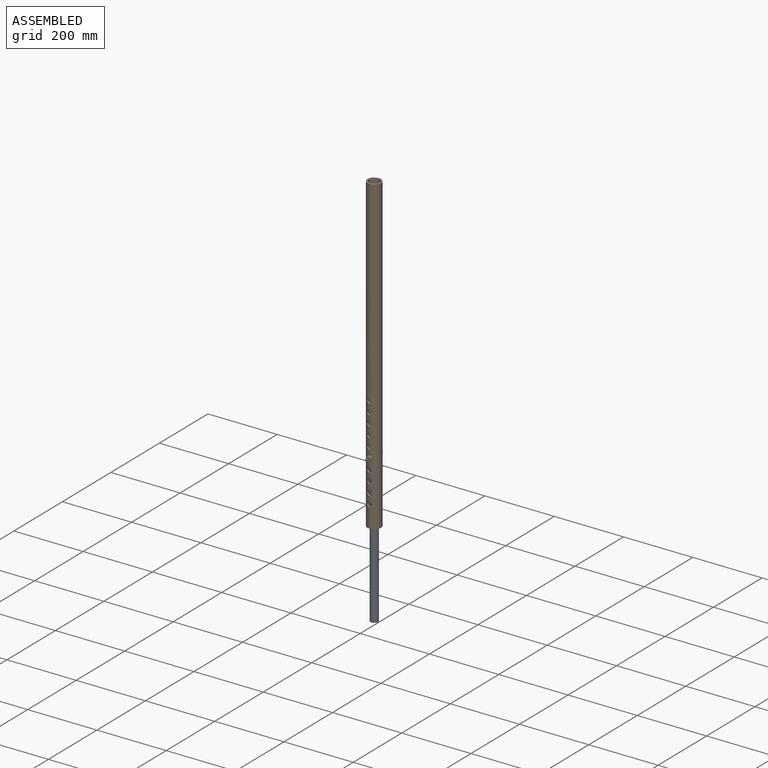
[diagram: assembled view]
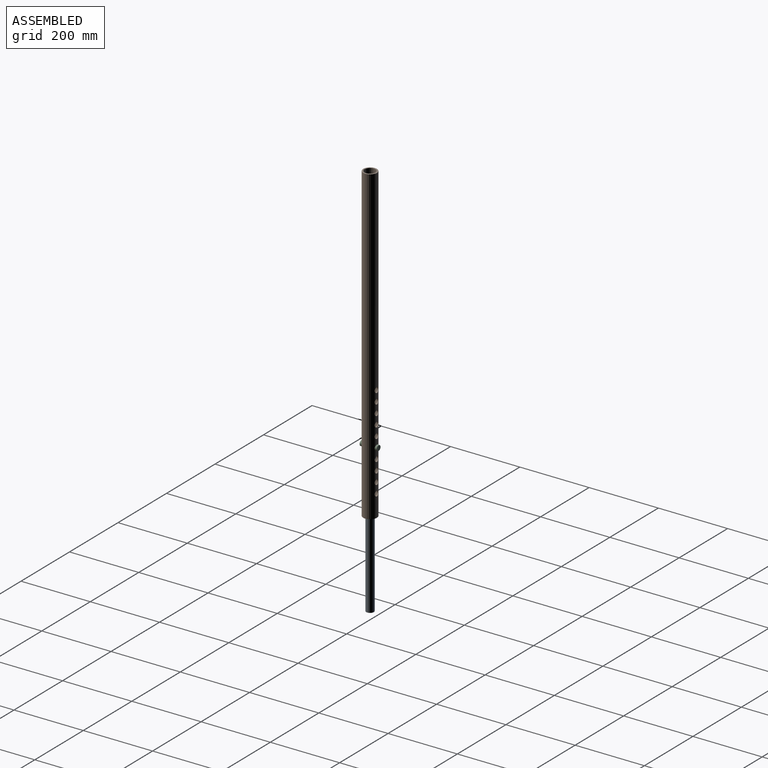
[diagram: assembled view, second angle]
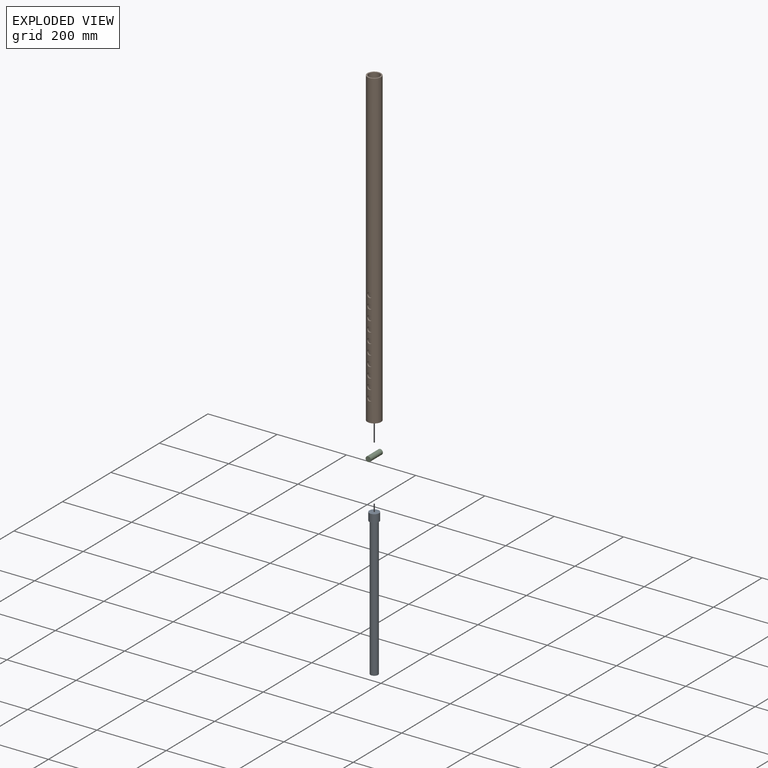
[diagram: exploded view]
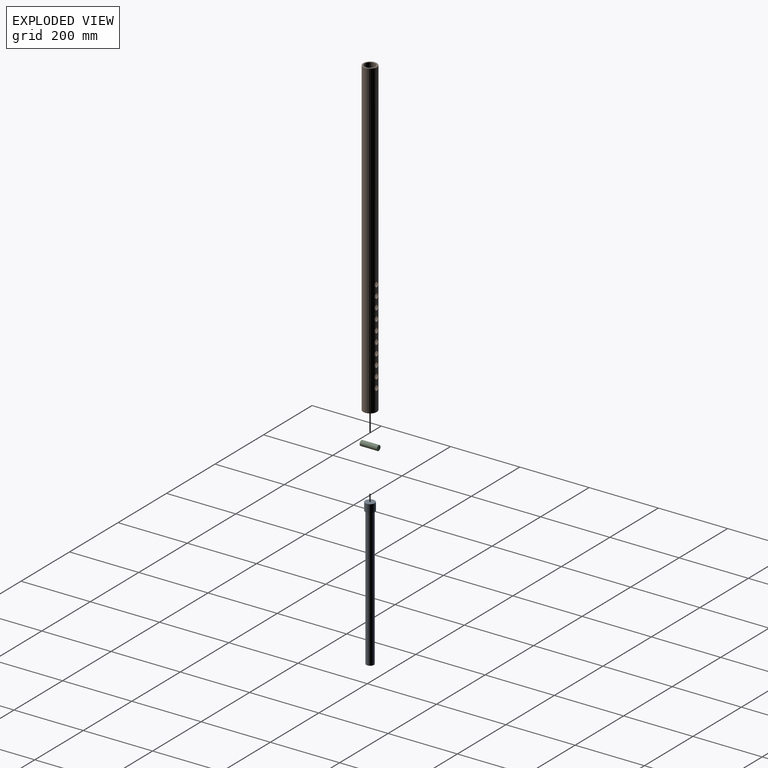
[diagram: exploded view, second angle]
ASSEMBLY  parts=3 mates=2
PART A: 5 faces, bbox 28x28x423 mm
  f0: cylinder r=11mm len=400mm, axis (0,0,-1), area 27646mm2, adj f1,f4
  f1: plane 22x22mm, normal (0,0,-1), area 380.1mm2, adj f0
  f2: cylinder r=14mm len=28mm, axis (0,0,-1), area 2023.2mm2, adj f3,f4
  f3: plane 28x28mm, normal (0,0,1), area 615.8mm2, adj f2
  f4: plane 28x28mm, normal (0,0,-1), area 235.6mm2, adj f0,f2
PART B: 24 faces, bbox 39.9x39.9x900 mm
  f0: cylinder r=16mm len=900mm, axis (0,0,-1), area 86837.4mm2, adj f2,f3,f4,f5,f6,f7,f8,f9
  f1: cylinder r=19.93mm len=900mm, axis (0,0,-1), area 109084.3mm2, adj f2,f3,f4,f5,f6,f7,f8,f9
  f2: plane 39.85x39.85mm, normal (0,0,1), area 443.1mm2, adj f0,f1
  f3: plane 39.85x39.85mm, normal (0,0,-1), area 443.1mm2, adj f0,f1
  f4: cylinder r=7.5mm len=15mm, axis (0,-1,0), area 194.1mm2, adj f0,f1
  f5: cylinder r=7.5mm len=15mm, axis (0,-1,0), area 194.1mm2, adj f0,f1
  f6: cylinder r=7.5mm len=15mm, axis (0,-1,0), area 194.1mm2, adj f0,f1
  f7: cylinder r=7.5mm len=15mm, axis (0,-1,0), area 194.1mm2, adj f0,f1
  f8: cylinder r=7.5mm len=15mm, axis (0,-1,0), area 194.1mm2, adj f0,f1
  f9: cylinder r=7.5mm len=15mm, axis (0,-1,0), area 194.1mm2, adj f0,f1
  f10: cylinder r=7.5mm len=15mm, axis (0,-1,0), area 194.1mm2, adj f0,f1
  f11: cylinder r=7.5mm len=15mm, axis (0,-1,0), area 194.1mm2, adj f0,f1
  f12: cylinder r=7.5mm len=15mm, axis (0,-1,0), area 194.1mm2, adj f0,f1
  f13: cylinder r=7.5mm len=15mm, axis (0,-1,0), area 194.1mm2, adj f0,f1
  f14: cylinder r=7.5mm len=15mm, axis (0,-1,0), area 194.1mm2, adj f0,f1
  f15: cylinder r=7.5mm len=15mm, axis (0,-1,0), area 194.1mm2, adj f0,f1
  f16: cylinder r=7.5mm len=15mm, axis (0,-1,0), area 194.1mm2, adj f0,f1
  f17: cylinder r=7.5mm len=15mm, axis (0,-1,0), area 194.1mm2, adj f0,f1
  f18: cylinder r=7.5mm len=15mm, axis (0,-1,0), area 194.1mm2, adj f0,f1
  f19: cylinder r=7.5mm len=15mm, axis (0,-1,0), area 194.1mm2, adj f0,f1
  f20: cylinder r=7.5mm len=15mm, axis (0,-1,0), area 194.1mm2, adj f0,f1
  f21: cylinder r=7.5mm len=15mm, axis (0,-1,0), area 194.1mm2, adj f0,f1
  f22: cylinder r=7.5mm len=15mm, axis (0,-1,0), area 194.1mm2, adj f0,f1
  f23: cylinder r=7.5mm len=15mm, axis (0,-1,0), area 194.1mm2, adj f0,f1
PART C: 3 faces, bbox 15x50x15 mm
  f0: cylinder r=7.5mm len=50mm, axis (0,1,0), area 2356.2mm2, adj f1,f2
  f1: plane 15x15mm, normal (0,-1,0), area 176.7mm2, adj f0
  f2: plane 15x15mm, normal (0,1,0), area 176.7mm2, adj f0
PLACE A t=(-322.79,62.03,-325.91)mm
PLACE B t=(-322.79,62.03,-77.41)mm
PLACE C t=(-322.79,62.06,-107.46)mm
MATE fastened C.f0 <-> B.f14  axis (0,-1,0) through (-322.79,37.06,105.92)mm
MATE fastened A.f0 <-> B.f0  axis (0,0,-1) through (-322.79,62.03,74.09)mm
